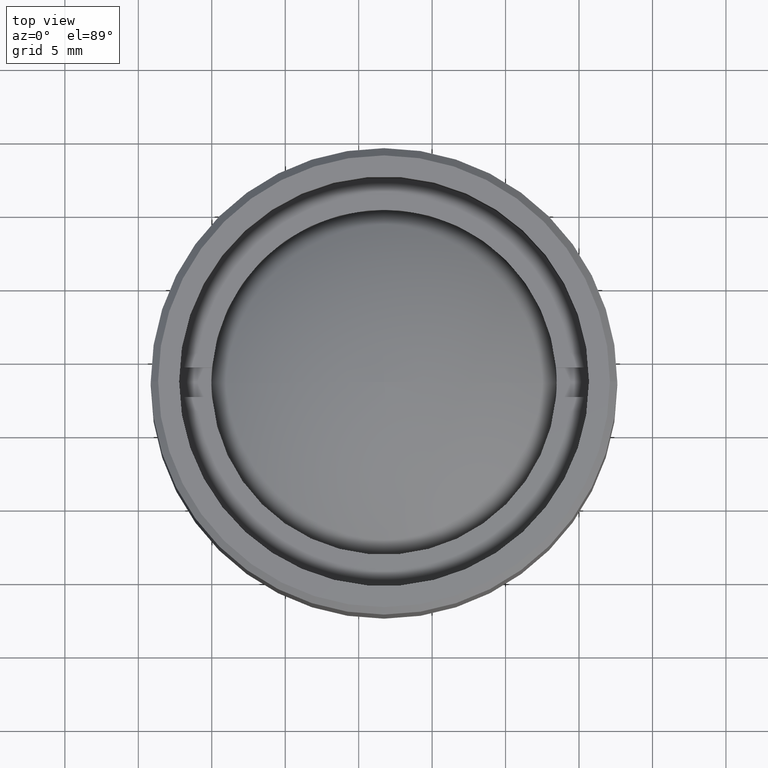
[diagram: clean part render]
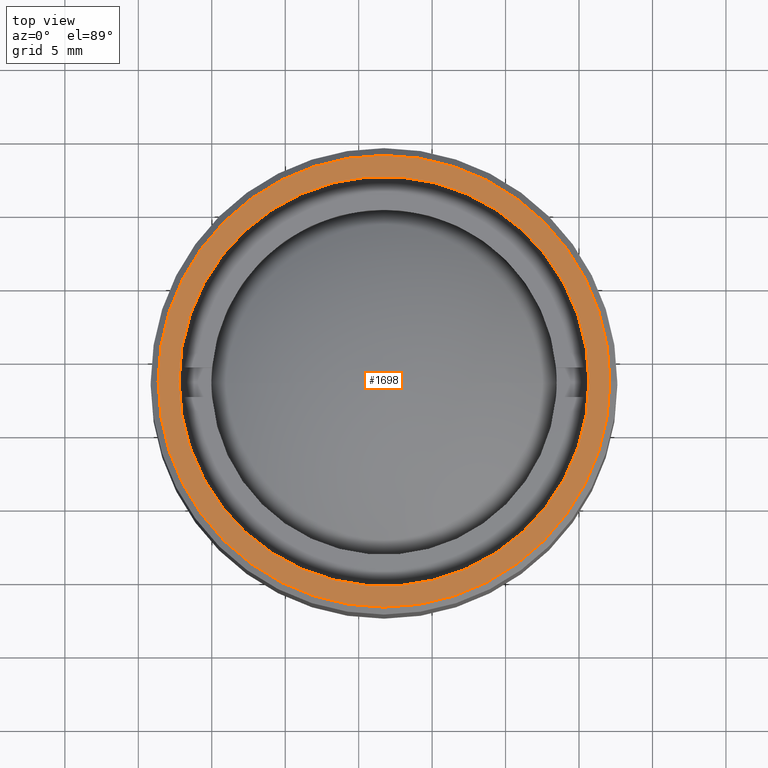
[diagram: same view with one face highlighted and labeled with its STEP entity id]
A machine part, top view. The second image highlights one B-rep face of the part: STEP entity #1698.
In plain terms, the highlighted planar face has unit normal (0, 0, 1).
Its self-contained STEP definition (entity closure, byte-faithful):
#13 = AXIS2_PLACEMENT_3D ( 'NONE', #1254, #1122, #1651 ) ;
#41 = DIRECTION ( 'NONE',  ( 0.000000000000000000, 0.000000000000000000, 1.000000000000000000 ) ) ;
#209 = CARTESIAN_POINT ( 'NONE',  ( 0.000000000000000000, 0.000000000000000000, 21.50000000000000000 ) ) ;
#334 = CARTESIAN_POINT ( 'NONE',  ( 13.94999999999999929, 0.000000000000000000, 21.50000000000000000 ) ) ;
#371 = AXIS2_PLACEMENT_3D ( 'NONE', #1621, #590, #950 ) ;
#385 = ORIENTED_EDGE ( 'NONE', *, *, #683, .F. ) ;
#387 = CARTESIAN_POINT ( 'NONE',  ( -15.37800000000000900, 0.000000000000000000, 21.50000000000000000 ) ) ;
#467 = ORIENTED_EDGE ( 'NONE', *, *, #547, .T. ) ;
#469 = CARTESIAN_POINT ( 'NONE',  ( 0.000000000000000000, 0.000000000000000000, 21.50000000000000000 ) ) ;
#481 = EDGE_LOOP ( 'NONE', ( #467, #808 ) ) ;
#523 = EDGE_CURVE ( 'NONE', #1303, #1065, #644, .T. ) ;
#524 = CIRCLE ( 'NONE', #1488, 13.94999999999999929 ) ;
#538 = EDGE_LOOP ( 'NONE', ( #385, #1550 ) ) ;
#547 = EDGE_CURVE ( 'NONE', #1473, #1103, #1475, .T. ) ;
#590 = DIRECTION ( 'NONE',  ( 0.000000000000000000, 0.000000000000000000, 1.000000000000000000 ) ) ;
#612 = FACE_BOUND ( 'NONE', #538, .T. ) ;
#644 = CIRCLE ( 'NONE', #860, 13.94999999999999929 ) ;
#654 = CIRCLE ( 'NONE', #681, 15.37800000000000900 ) ;
#681 = AXIS2_PLACEMENT_3D ( 'NONE', #469, #866, #756 ) ;
#683 = EDGE_CURVE ( 'NONE', #1065, #1303, #524, .T. ) ;
#690 = FACE_OUTER_BOUND ( 'NONE', #481, .T. ) ;
#756 = DIRECTION ( 'NONE',  ( 1.000000000000000000, 0.000000000000000000, 0.000000000000000000 ) ) ;
#808 = ORIENTED_EDGE ( 'NONE', *, *, #1313, .T. ) ;
#860 = AXIS2_PLACEMENT_3D ( 'NONE', #1507, #41, #1217 ) ;
#866 = DIRECTION ( 'NONE',  ( 0.000000000000000000, 0.000000000000000000, 1.000000000000000000 ) ) ;
#871 = PLANE ( 'NONE',  #13 ) ;
#890 = DIRECTION ( 'NONE',  ( 1.000000000000000000, 0.000000000000000000, 0.000000000000000000 ) ) ;
#950 = DIRECTION ( 'NONE',  ( 1.000000000000000000, 0.000000000000000000, 0.000000000000000000 ) ) ;
#1065 = VERTEX_POINT ( 'NONE', #334 ) ;
#1103 = VERTEX_POINT ( 'NONE', #1117 ) ;
#1117 = CARTESIAN_POINT ( 'NONE',  ( 15.37800000000000900, 1.913878017707484038E-15, 21.50000000000000000 ) ) ;
#1122 = DIRECTION ( 'NONE',  ( 0.000000000000000000, 0.000000000000000000, 1.000000000000000000 ) ) ;
#1217 = DIRECTION ( 'NONE',  ( 1.000000000000000000, 0.000000000000000000, 0.000000000000000000 ) ) ;
#1254 = CARTESIAN_POINT ( 'NONE',  ( 0.000000000000000000, 0.000000000000000000, 21.50000000000000000 ) ) ;
#1270 = DIRECTION ( 'NONE',  ( 0.000000000000000000, 0.000000000000000000, 1.000000000000000000 ) ) ;
#1303 = VERTEX_POINT ( 'NONE', #1416 ) ;
#1313 = EDGE_CURVE ( 'NONE', #1103, #1473, #654, .T. ) ;
#1416 = CARTESIAN_POINT ( 'NONE',  ( -13.94999999999999929, 1.708382284810557368E-15, 21.50000000000000000 ) ) ;
#1473 = VERTEX_POINT ( 'NONE', #387 ) ;
#1475 = CIRCLE ( 'NONE', #371, 15.37800000000000900 ) ;
#1488 = AXIS2_PLACEMENT_3D ( 'NONE', #209, #1270, #890 ) ;
#1507 = CARTESIAN_POINT ( 'NONE',  ( 0.000000000000000000, 0.000000000000000000, 21.50000000000000000 ) ) ;
#1550 = ORIENTED_EDGE ( 'NONE', *, *, #523, .F. ) ;
#1621 = CARTESIAN_POINT ( 'NONE',  ( 0.000000000000000000, 0.000000000000000000, 21.50000000000000000 ) ) ;
#1651 = DIRECTION ( 'NONE',  ( 1.000000000000000000, 0.000000000000000000, -0.000000000000000000 ) ) ;
#1698 = ADVANCED_FACE ( 'NONE', ( #690, #612 ), #871, .T. ) ;